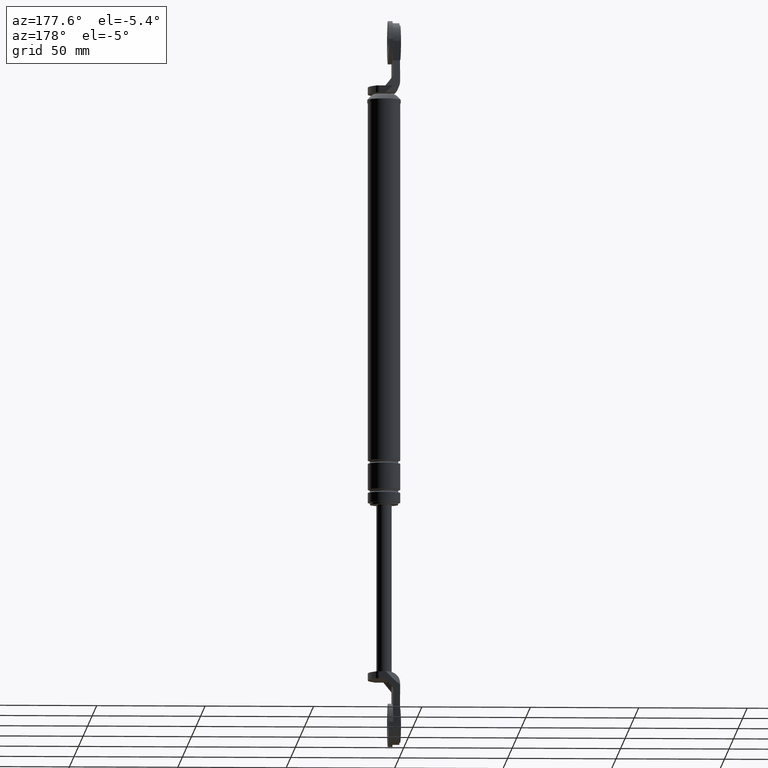
[diagram: clean part render]
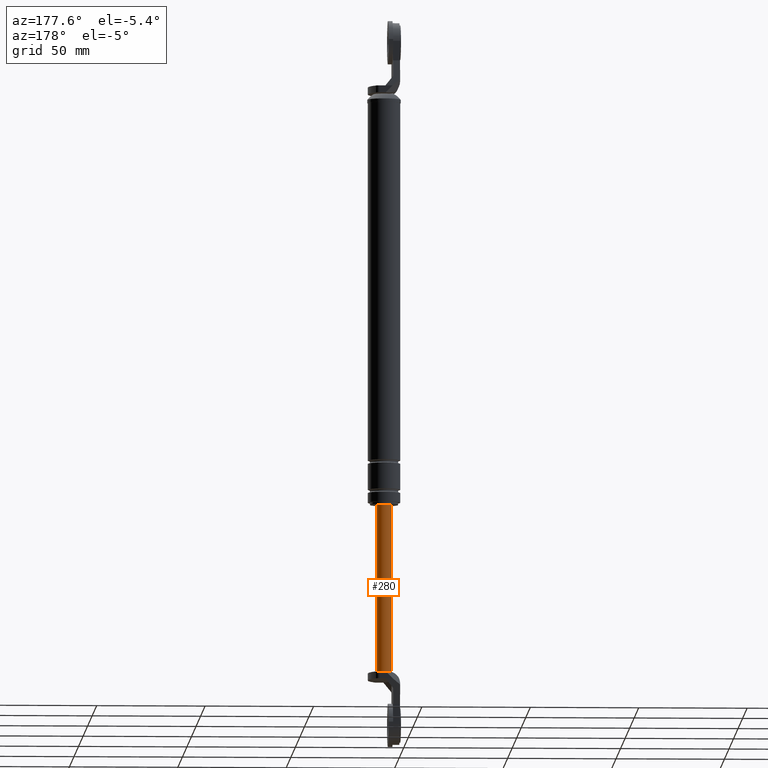
[diagram: same view with one face highlighted and labeled with its STEP entity id]
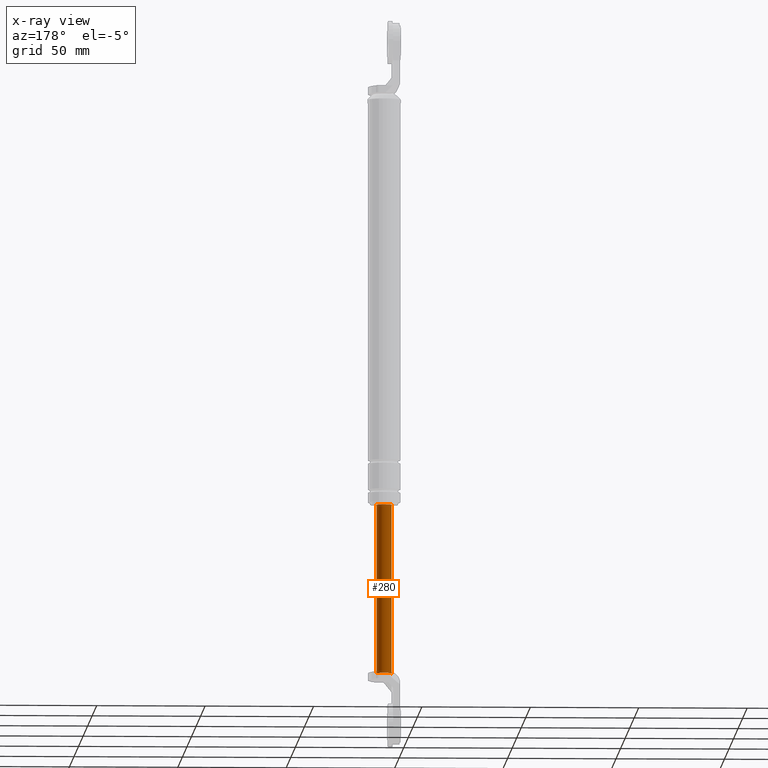
[diagram: x-ray of the same camera — body ghosted, the highlighted face saturated]
A machine part, auxiliary view. The second image highlights one B-rep face of the part: STEP entity #280.
The next image is the same camera in x-ray: the body ghosted, the highlighted face saturated — about 0% of this face is hidden behind the body in this view.
In plain terms, the highlighted cylindrical surface (edge-blend (fillet) strip) has radius 3.5 mm, axis along (-0, 0, 1).
Its self-contained STEP definition (entity closure, byte-faithful):
#280=ADVANCED_FACE('',(#1059),#1058,.T.);
#1058=CYLINDRICAL_SURFACE('',#1579,3.50000000000E+000);
#1059=FACE_OUTER_BOUND('',#1580,.T.);
#1576=CARTESIAN_POINT('',(7.00000000000E+000,6.39488462184E-014,-7.07000000000E+002));
#1577=DIRECTION('',(-0.00000000000E+000,-0.00000000000E+000,-1.00000000000E+000));
#1578=DIRECTION('',(1.00000000000E+000,-0.00000000000E+000,-0.00000000000E+000));
#1579=AXIS2_PLACEMENT_3D('',#1576,#1577,#1578);
#1580=EDGE_LOOP('',(#1978,#1979,#1980,#1981,#1982));
#1978=ORIENTED_EDGE('',*,*,#2155,.F.);
#1979=ORIENTED_EDGE('',*,*,#2192,.F.);
#1980=ORIENTED_EDGE('',*,*,#2171,.T.);
#1981=ORIENTED_EDGE('',*,*,#2159,.F.);
#1982=ORIENTED_EDGE('',*,*,#2193,.T.);
#2155=EDGE_CURVE('',#3263,#3264,#3265,.T.);
#2159=EDGE_CURVE('',#3285,#3292,#3293,.T.);
#2171=EDGE_CURVE('',#3371,#3292,#3372,.T.);
#2192=EDGE_CURVE('',#3371,#3263,#3506,.T.);
#2193=EDGE_CURVE('',#3285,#3264,#3512,.T.);
#3263=VERTEX_POINT('',#4188);
#3264=VERTEX_POINT('',#4189);
#3265=CIRCLE('',#4193,3.50000000000E+000);
#3285=VERTEX_POINT('',#4203);
#3292=VERTEX_POINT('',#4214);
#3293=(BOUNDED_CURVE() B_SPLINE_CURVE(3,(#4215,#4216,#4217,#4218,#4219,#4220,#4221,#4222,#4223,#4224,#4225,#4226),.UNSPECIFIED.,.F.,.F.) B_SPLINE_CURVE_WITH_KNOTS((4,2,2,2,2,4),(6.70946929516E-003,7.54966440166E-003,7.97019605060E-003,8.39072769954E-003,9.23179099743E-003,1.00728542953E-002),.UNSPECIFIED.) CURVE() GEOMETRIC_REPRESENTATION_ITEM() RATIONAL_B_SPLINE_CURVE((1.00000000000E+000,1.00000000000E+000,1.00000000000E+000,1.00000000000E+000,1.00000000000E+000,1.00000000000E+000,1.00000000000E+000,1.00000000000E+000,1.00000000000E+000,1.00000000000E+000,1.00000000000E+000,1.00000000000E+000)) REPRESENTATION_ITEM('') );
#3371=VERTEX_POINT('',#4267);
#3372=CIRCLE('',#4271,3.50000000000E+000);
#3506=(BOUNDED_CURVE() B_SPLINE_CURVE(1,(#4344,#4345),.UNSPECIFIED.,.F.,.F.) B_SPLINE_CURVE_WITH_KNOTS((2,2),(8.57870485626E-002,9.16666666534E-001),.UNSPECIFIED.) CURVE() GEOMETRIC_REPRESENTATION_ITEM() RATIONAL_B_SPLINE_CURVE((1.00000000000E+000,1.00000000000E+000)) REPRESENTATION_ITEM('') );
#3512=(BOUNDED_CURVE() B_SPLINE_CURVE(1,(#4346,#4347),.UNSPECIFIED.,.F.,.F.) B_SPLINE_CURVE_WITH_KNOTS((2,2),(8.33337834240E-002,9.16666666667E-001),.UNSPECIFIED.) CURVE() GEOMETRIC_REPRESENTATION_ITEM() RATIONAL_B_SPLINE_CURVE((7.50000000000E-001,7.50000000000E-001)) REPRESENTATION_ITEM('') );
#4188=CARTESIAN_POINT('',(1.05000000000E+001,6.39488462184E-014,2.14000000000E+002));
#4189=CARTESIAN_POINT('',(3.50000000000E+000,6.38008164818E-014,2.14000000000E+002));
#4190=CARTESIAN_POINT('',(7.00000000000E+000,6.39488462184E-014,2.14000000000E+002));
#4191=DIRECTION('',(0.00000000000E+000,0.00000000000E+000,-1.00000000000E+000));
#4192=DIRECTION('',(1.00000000000E+000,1.22460635382E-016,0.00000000000E+000));
#4193=AXIS2_PLACEMENT_3D('',#4190,#4191,#4192);
#4203=CARTESIAN_POINT('',(3.50000091517E+000,-2.53326592982E-003,2.92230303704E+002));
#4214=CARTESIAN_POINT('',(5.00000000000E+000,-2.87228132327E+000,2.92000000000E+002));
#4215=CARTESIAN_POINT('',(3.50000053060E+000,-1.94923060104E-003,2.92230303826E+002));
#4216=CARTESIAN_POINT('',(3.50013434228E+000,-2.84558116900E-001,2.92230261744E+002));
#4217=CARTESIAN_POINT('',(3.53406286202E+000,-5.62402931972E-001,2.92219214289E+002));
#4218=CARTESIAN_POINT('',(3.63470220298E+000,-9.71866792818E-001,2.92189887439E+002));
#4219=CARTESIAN_POINT('',(3.67695845089E+000,-1.10773629057E+000,2.92177946622E+002));
#4220=CARTESIAN_POINT('',(3.77628905103E+000,-1.37017245046E+000,2.92151787006E+002));
#4221=CARTESIAN_POINT('',(3.83347362821E+000,-1.49752005310E+000,2.92137531156E+002));
#4222=CARTESIAN_POINT('',(4.02729222201E+000,-1.86837650308E+000,2.92093739946E+002));
#4223=CARTESIAN_POINT('',(4.18862121447E+000,-2.10341309695E+000,2.92062756987E+002));
#4224=CARTESIAN_POINT('',(4.55826505313E+000,-2.52311866177E+000,2.92016068386E+002));
#4225=CARTESIAN_POINT('',(4.76658406278E+000,-2.70975132641E+000,2.92000000000E+002));
#4226=CARTESIAN_POINT('',(5.00000000000E+000,-2.87228132327E+000,2.92000000000E+002));
#4267=CARTESIAN_POINT('',(1.05000000000E+001,6.30200217923E-014,2.92000000000E+002));
#4268=CARTESIAN_POINT('',(7.00000000000E+000,6.39488462184E-014,2.92000000000E+002));
#4269=DIRECTION('',(0.00000000000E+000,-0.00000000000E+000,-1.00000000000E+000));
#4270=DIRECTION('',(-5.71428571429E-001,-8.20651806648E-001,0.00000000000E+000));
#4271=AXIS2_PLACEMENT_3D('',#4268,#4269,#4270);
#4344=CARTESIAN_POINT('',(1.05000000000E+001,6.39488462184E-014,2.92000000005E+002));
#4345=CARTESIAN_POINT('',(1.05000000000E+001,6.39488462184E-014,2.14000000012E+002));
#4346=CARTESIAN_POINT('',(3.50000000000E+000,6.39488462184E-014,2.92230303742E+002));
#4347=CARTESIAN_POINT('',(3.50000000000E+000,6.39488462184E-014,2.14000000000E+002));